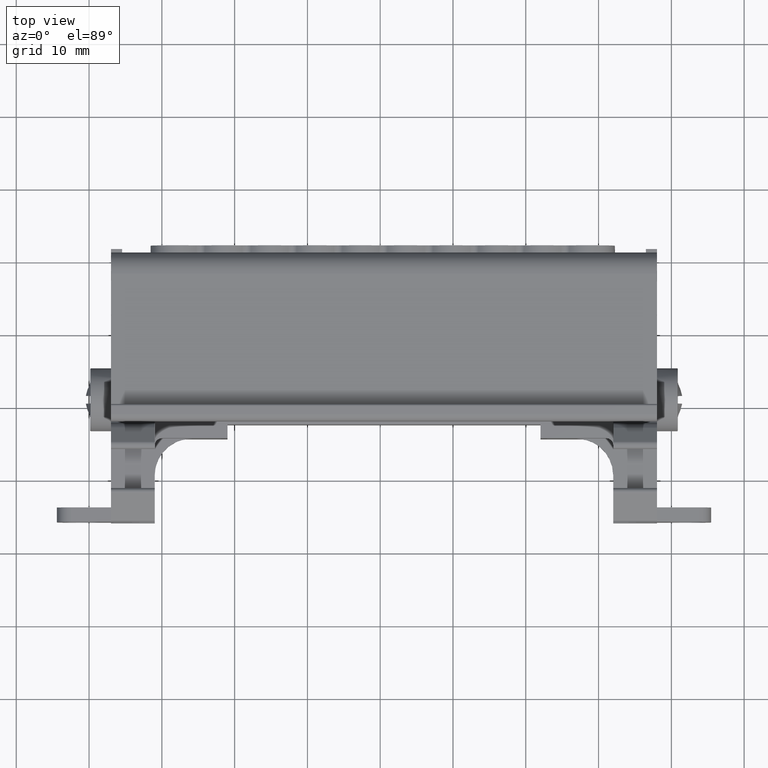
[diagram: clean part render]
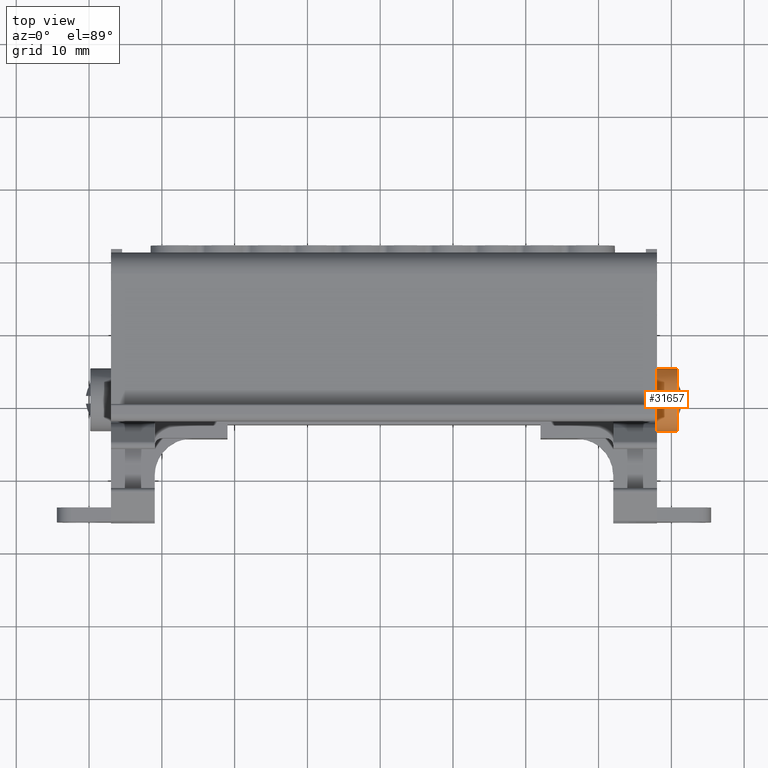
[diagram: same view with one face highlighted and labeled with its STEP entity id]
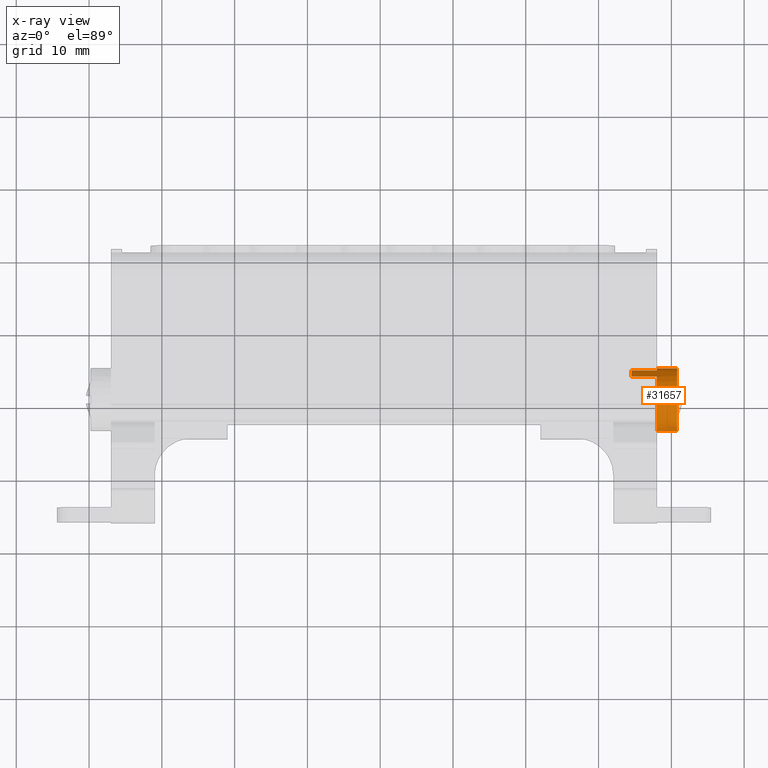
[diagram: x-ray of the same camera — body ghosted, the highlighted face saturated]
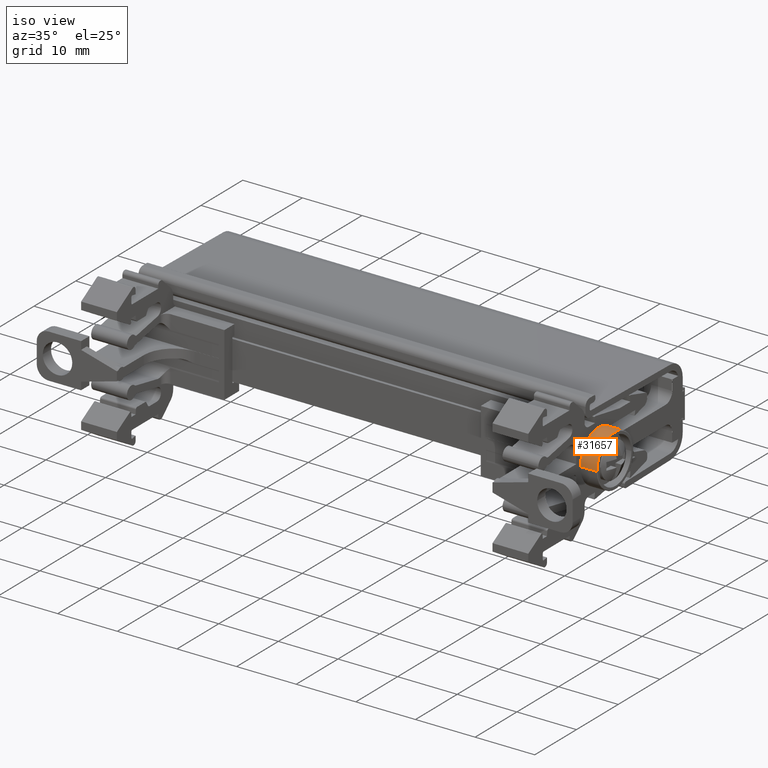
[diagram: same view with one face highlighted and labeled with its STEP entity id]
A machine part, top view. The second image highlights one B-rep face of the part: STEP entity #31657.
The next image is the same camera in x-ray: the body ghosted, the highlighted face saturated — about 0% of this face is hidden behind the body in this view.
A second angle (iso view) of the same face is appended — the face is thin or edge-on in the first view.
In plain terms, the highlighted cylindrical surface (edge-blend (fillet) strip) has radius 4.325 mm, axis along (-1, -0, -0).
Its self-contained STEP definition (entity closure, byte-faithful):
#2440 = EDGE_LOOP ( 'NONE', ( #18121, #18165, #18119, #18116, #18154, #18140, #18115, #18133 ) ) ;
#5233 = CARTESIAN_POINT ( 'NONE',  ( -191.9794392833572100, -123.3703569170648800, 140.9265447534687000 ) ) ;
#8596 = VERTEX_POINT ( 'NONE', #29372 ) ;
#8603 = VERTEX_POINT ( 'NONE', #29379 ) ;
#8669 = VERTEX_POINT ( 'NONE', #29459 ) ;
#8670 = VERTEX_POINT ( 'NONE', #29436 ) ;
#8688 = VERTEX_POINT ( 'NONE', #29486 ) ;
#8729 = VERTEX_POINT ( 'NONE', #29527 ) ;
#8763 = VERTEX_POINT ( 'NONE', #36283 ) ;
#8770 = VERTEX_POINT ( 'NONE', #5233 ) ;
#12170 = VECTOR ( 'NONE', #27607, 1000.000000000000000 ) ;
#12186 = CIRCLE ( 'NONE', #12190, 4.325000000000079200 ) ;
#12190 = AXIS2_PLACEMENT_3D ( 'NONE', #27505, #27485, #27475 ) ;
#12192 = VECTOR ( 'NONE', #27711, 1000.000000000000000 ) ;
#12195 = VECTOR ( 'NONE', #27704, 1000.000000000000000 ) ;
#12200 = VECTOR ( 'NONE', #28214, 1000.000000000000000 ) ;
#13594 = B_SPLINE_CURVE_WITH_KNOTS ( 'NONE', 3,
 ( #27747, #27749, #27707, #27684 ),
 .UNSPECIFIED., .F., .F.,
 ( 4, 4 ),
 ( 0.0000000000000000000, 1.000000000000000000 ),
 .UNSPECIFIED. ) ;
#13626 = B_SPLINE_CURVE_WITH_KNOTS ( 'NONE', 3,
 ( #27496, #27464, #27463, #27469 ),
 .UNSPECIFIED., .F., .F.,
 ( 4, 4 ),
 ( 0.0000000000000000000, 1.000000000000000000 ),
 .UNSPECIFIED. ) ;
#13646 = B_SPLINE_CURVE_WITH_KNOTS ( 'NONE', 3,
 ( #28313, #28319, #28349, #28510, #28446, #28468, #28475, #28410, #28463, #28450, #28415, #28470, #28448, #28508, #28422, #28425, #28477, #28453 ),
 .UNSPECIFIED., .F., .F.,
 ( 4, 2, 2, 2, 2, 2, 2, 2, 4 ),
 ( 0.0000000000000000000, 0.1250000000000000000, 0.2500000000000000000, 0.3750000000000000000, 0.5000000000000000000, 0.6250000000000000000, 0.7500000000000000000, 0.8750000000000000000, 1.000000000000000000 ),
 .UNSPECIFIED. ) ;
#18115 = ORIENTED_EDGE ( 'NONE', *, *, #37162, .T. ) ;
#18116 = ORIENTED_EDGE ( 'NONE', *, *, #37113, .T. ) ;
#18119 = ORIENTED_EDGE ( 'NONE', *, *, #37050, .T. ) ;
#18121 = ORIENTED_EDGE ( 'NONE', *, *, #37049, .T. ) ;
#18133 = ORIENTED_EDGE ( 'NONE', *, *, #37103, .F. ) ;
#18140 = ORIENTED_EDGE ( 'NONE', *, *, #37092, .T. ) ;
#18154 = ORIENTED_EDGE ( 'NONE', *, *, #37115, .T. ) ;
#18165 = ORIENTED_EDGE ( 'NONE', *, *, #37146, .T. ) ;
#22770 = DIRECTION ( 'NONE',  ( -1.000000000000000000, -1.101172293446148100E-014, -2.403906012228000300E-015 ) ) ;
#22785 = CARTESIAN_POINT ( 'NONE',  ( -191.9794392833572700, -119.0453568934736900, 140.9265447534687000 ) ) ;
#22803 = DIRECTION ( 'NONE',  ( 1.283494826156226800E-014, -1.000000000000000000, 0.0000000000000000000 ) ) ;
#22811 = FACE_OUTER_BOUND ( 'NONE', #2440, .T. ) ;
#22815 = CYLINDRICAL_SURFACE ( 'NONE', #29615, 4.325000000000079200 ) ;
#27463 = CARTESIAN_POINT ( 'NONE',  ( -191.9794392833573500, -114.8239281555275400, 142.0129841801805800 ) ) ;
#27464 = CARTESIAN_POINT ( 'NONE',  ( -191.9794392833573500, -114.7203568934736100, 141.4698551780612700 ) ) ;
#27469 = CARTESIAN_POINT ( 'NONE',  ( -191.9794392833573200, -115.0238691567729500, 142.5181671306964700 ) ) ;
#27475 = DIRECTION ( 'NONE',  ( 1.283494826156226800E-014, -1.000000000000000000, 0.0000000000000000000 ) ) ;
#27485 = DIRECTION ( 'NONE',  ( -1.000000000000000000, -1.101172293446148100E-014, -2.403906012228000300E-015 ) ) ;
#27496 = CARTESIAN_POINT ( 'NONE',  ( -191.9794392833573200, -114.7203568698824900, 140.9265447534687000 ) ) ;
#27505 = CARTESIAN_POINT ( 'NONE',  ( -189.2294392833572700, -119.0453568934736700, 140.9265447534687000 ) ) ;
#27576 = LINE ( 'NONE', #27625, #12170 ) ;
#27607 = DIRECTION ( 'NONE',  ( 1.000000000000000000, 1.101172293446148100E-014, 2.403906012228000300E-015 ) ) ;
#27625 = CARTESIAN_POINT ( 'NONE',  ( -191.9794392833572900, -115.9306234911025500, 143.9272214825007000 ) ) ;
#27671 = LINE ( 'NONE', #27738, #12195 ) ;
#27684 = CARTESIAN_POINT ( 'NONE',  ( -195.5094392833571800, -115.9306234911026100, 143.9272214825007000 ) ) ;
#27689 = CARTESIAN_POINT ( 'NONE',  ( -191.9794392833572100, -123.3703568934737700, 140.9265447534687000 ) ) ;
#27704 = DIRECTION ( 'NONE',  ( -1.000000000000000000, -1.100161628464490100E-014, -2.364590298907920300E-015 ) ) ;
#27707 = CARTESIAN_POINT ( 'NONE',  ( -195.5094392833571800, -115.5406486375687100, 143.5224235612068900 ) ) ;
#27711 = DIRECTION ( 'NONE',  ( -1.000000000000000000, -1.101172293446148100E-014, -2.403906012228000300E-015 ) ) ;
#27732 = LINE ( 'NONE', #27689, #12192 ) ;
#27738 = CARTESIAN_POINT ( 'NONE',  ( -154.5504375337435800, -115.0238691458047400, 142.5181671350373700 ) ) ;
#27747 = CARTESIAN_POINT ( 'NONE',  ( -195.5094392833572100, -115.0238691838937100, 142.5181671351159300 ) ) ;
#27749 = CARTESIAN_POINT ( 'NONE',  ( -195.5094392833572100, -115.2307201055297000, 143.0408089090408600 ) ) ;
#28207 = LINE ( 'NONE', #28285, #12200 ) ;
#28214 = DIRECTION ( 'NONE',  ( -1.000000000000000000, -1.101172293446148100E-014, -2.403906012228000300E-015 ) ) ;
#28285 = CARTESIAN_POINT ( 'NONE',  ( -191.9794392833573200, -114.7203568934736100, 140.9265447534687000 ) ) ;
#28313 = CARTESIAN_POINT ( 'NONE',  ( -191.9794392833573200, -115.9306234770967900, 143.9272215019654200 ) ) ;
#28319 = CARTESIAN_POINT ( 'NONE',  ( -191.9794392833572700, -116.2275458330357100, 144.2354299367408400 ) ) ;
#28349 = CARTESIAN_POINT ( 'NONE',  ( -191.9794392833572900, -116.5705095667254900, 144.4992063716032900 ) ) ;
#28410 = CARTESIAN_POINT ( 'NONE',  ( -191.9794392833572700, -119.8454524826955200, 145.1983859696789500 ) ) ;
#28415 = CARTESIAN_POINT ( 'NONE',  ( -191.9794392833572100, -121.4329476612800800, 144.5580996069564900 ) ) ;
#28422 = CARTESIAN_POINT ( 'NONE',  ( -191.9794392833571800, -123.0559995508414500, 142.6009180103343400 ) ) ;
#28425 = CARTESIAN_POINT ( 'NONE',  ( -191.9794392833572400, -123.3063724339670300, 141.7824226022762600 ) ) ;
#28446 = CARTESIAN_POINT ( 'NONE',  ( -191.9794392833572900, -117.7238123652343800, 145.0668708744748600 ) ) ;
#28448 = CARTESIAN_POINT ( 'NONE',  ( -191.9794392833572100, -122.3907997178682600, 143.7008541516995300 ) ) ;
#28450 = CARTESIAN_POINT ( 'NONE',  ( -191.9794392833572400, -121.0600329859864000, 144.7775005530933200 ) ) ;
#28453 = CARTESIAN_POINT ( 'NONE',  ( -191.9794392833572100, -123.3703569170648800, 140.9265447534687000 ) ) ;
#28463 = CARTESIAN_POINT ( 'NONE',  ( -191.9794392833572900, -120.2662342419491600, 145.0976643667601400 ) ) ;
#28468 = CARTESIAN_POINT ( 'NONE',  ( -191.9794392833572900, -118.5608813188011900, 145.2455798014800900 ) ) ;
#28470 = CARTESIAN_POINT ( 'NONE',  ( -191.9794392833572700, -122.0983739092616500, 144.0197417128804300 ) ) ;
#28475 = CARTESIAN_POINT ( 'NONE',  ( -191.9794392833572700, -118.9927210685805400, 145.2723484534007000 ) ) ;
#28477 = CARTESIAN_POINT ( 'NONE',  ( -191.9794392833572100, -123.3703568934738100, 141.3545112573030500 ) ) ;
#28508 = CARTESIAN_POINT ( 'NONE',  ( -191.9794392833572400, -122.8696433967647400, 142.9913965808768000 ) ) ;
#28510 = CARTESIAN_POINT ( 'NONE',  ( -191.9794392833572400, -117.3186910478580700, 144.9149536324565600 ) ) ;
#29372 = CARTESIAN_POINT ( 'NONE',  ( -189.2294392833573200, -114.7203568934735800, 140.9265447534687000 ) ) ;
#29379 = CARTESIAN_POINT ( 'NONE',  ( -189.2294392833572100, -123.3703568934737400, 140.9265447534687000 ) ) ;
#29436 = CARTESIAN_POINT ( 'NONE',  ( -191.9794392833573200, -114.7203568698824900, 140.9265447534687000 ) ) ;
#29459 = CARTESIAN_POINT ( 'NONE',  ( -195.5094392833572100, -115.0238691838937100, 142.5181671351159300 ) ) ;
#29486 = CARTESIAN_POINT ( 'NONE',  ( -191.9794392833573200, -115.0238691567729500, 142.5181671306964700 ) ) ;
#29527 = CARTESIAN_POINT ( 'NONE',  ( -191.9794392833573200, -115.9306234770967900, 143.9272215019654200 ) ) ;
#29615 = AXIS2_PLACEMENT_3D ( 'NONE', #22785, #22770, #22803 ) ;
#31657 = ADVANCED_FACE ( 'NONE', ( #22811 ), #22815, .T. ) ;
#36283 = CARTESIAN_POINT ( 'NONE',  ( -195.5094392833571800, -115.9306234911026100, 143.9272214825007000 ) ) ;
#37049 = EDGE_CURVE ( 'NONE', #8603, #8596, #12186, .T. ) ;
#37050 = EDGE_CURVE ( 'NONE', #8670, #8688, #13626, .T. ) ;
#37092 = EDGE_CURVE ( 'NONE', #8763, #8729, #27576, .T. ) ;
#37103 = EDGE_CURVE ( 'NONE', #8603, #8770, #27732, .T. ) ;
#37113 = EDGE_CURVE ( 'NONE', #8688, #8669, #27671, .T. ) ;
#37115 = EDGE_CURVE ( 'NONE', #8669, #8763, #13594, .T. ) ;
#37146 = EDGE_CURVE ( 'NONE', #8596, #8670, #28207, .T. ) ;
#37162 = EDGE_CURVE ( 'NONE', #8729, #8770, #13646, .T. ) ;